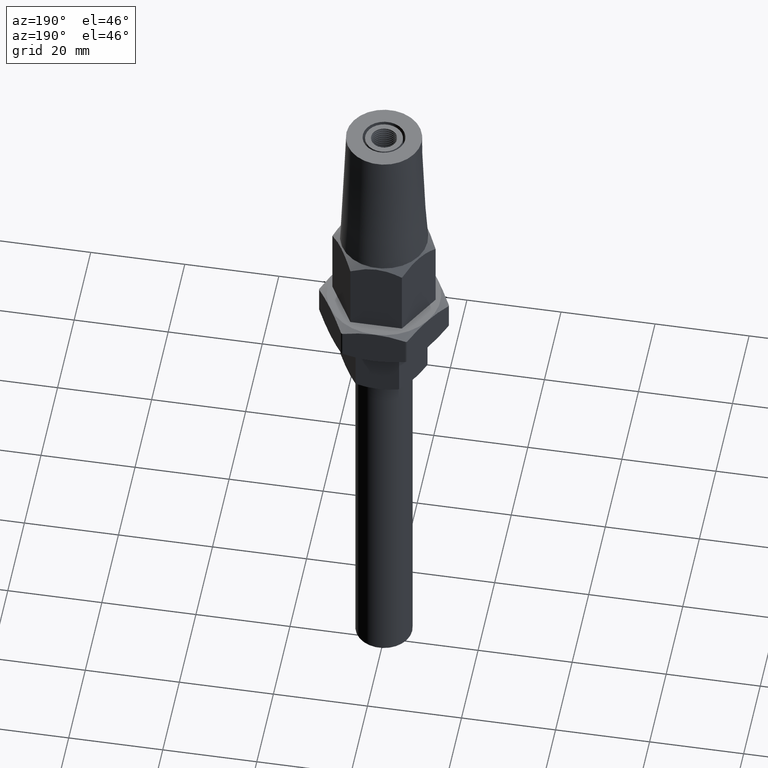
[diagram: clean part render]
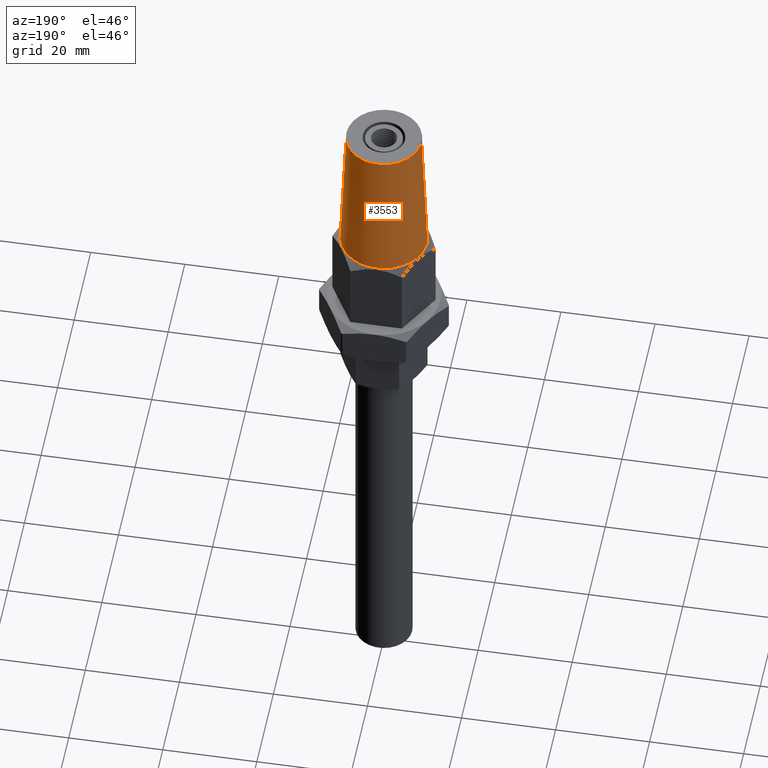
[diagram: same view with one face highlighted and labeled with its STEP entity id]
A machine part, auxiliary view. The second image highlights one B-rep face of the part: STEP entity #3553.
In plain terms, the highlighted conical surface has half-angle 2.386 deg.
Its self-contained STEP definition (entity closure, byte-faithful):
#51 = CIRCLE ( 'NONE', #10696, 9.249999999999998200 ) ;
#189 = ORIENTED_EDGE ( 'NONE', *, *, #17617, .F. ) ;
#268 = CARTESIAN_POINT ( 'NONE',  ( -7.999999999999996400, 0.0000000000000000000, 47.00000000000000000 ) ) ;
#1341 = VERTEX_POINT ( 'NONE', #6211 ) ;
#1478 = VERTEX_POINT ( 'NONE', #13539 ) ;
#1801 = DIRECTION ( 'NONE',  ( -1.000000000000000000, 0.0000000000000000000, 0.0000000000000000000 ) ) ;
#1997 = DIRECTION ( 'NONE',  ( 0.04163054471218118100, 5.098271332853360400E-018, -0.9991330730923518900 ) ) ;
#2028 = CARTESIAN_POINT ( 'NONE',  ( 3.896954326443487200E-015, 0.0000000000000000000, 47.00000000000000000 ) ) ;
#3539 = FACE_OUTER_BOUND ( 'NONE', #11776, .T. ) ;
#3553 = ADVANCED_FACE ( 'NONE', ( #3539 ), #13056, .T. ) ;
#4576 = ORIENTED_EDGE ( 'NONE', *, *, #11749, .T. ) ;
#5005 = LINE ( 'NONE', #13669, #8650 ) ;
#6211 = CARTESIAN_POINT ( 'NONE',  ( 9.250000000000000000, 1.132798289211301500E-015, 17.00000000000000000 ) ) ;
#6513 = CIRCLE ( 'NONE', #9176, 8.000000000000000000 ) ;
#6949 = CARTESIAN_POINT ( 'NONE',  ( -7.999999999999996400, 0.0000000000000000000, 47.00000000000000000 ) ) ;
#7144 = ORIENTED_EDGE ( 'NONE', *, *, #12342, .F. ) ;
#7849 = DIRECTION ( 'NONE',  ( -1.309466755803651800E-016, -0.0000000000000000000, -1.000000000000000000 ) ) ;
#8437 = DIRECTION ( 'NONE',  ( -0.04163054471218144400, 0.0000000000000000000, -0.9991330730923518900 ) ) ;
#8650 = VECTOR ( 'NONE', #1997, 1000.000000000000200 ) ;
#9176 = AXIS2_PLACEMENT_3D ( 'NONE', #9846, #18350, #10745 ) ;
#9230 = AXIS2_PLACEMENT_3D ( 'NONE', #2028, #7849, #1801 ) ;
#9278 = VERTEX_POINT ( 'NONE', #268 ) ;
#9559 = CARTESIAN_POINT ( 'NONE',  ( -9.250000000000000000, 0.0000000000000000000, 17.00000000000000000 ) ) ;
#9846 = CARTESIAN_POINT ( 'NONE',  ( 3.896954326443487200E-015, 0.0000000000000000000, 47.00000000000000000 ) ) ;
#10498 = LINE ( 'NONE', #6949, #13873 ) ;
#10696 = AXIS2_PLACEMENT_3D ( 'NONE', #14367, #18666, #15873 ) ;
#10745 = DIRECTION ( 'NONE',  ( -1.000000000000000000, 0.0000000000000000000, 0.0000000000000000000 ) ) ;
#11749 = EDGE_CURVE ( 'NONE', #9278, #1478, #6513, .T. ) ;
#11776 = EDGE_LOOP ( 'NONE', ( #4576, #15285, #189, #7144 ) ) ;
#12342 = EDGE_CURVE ( 'NONE', #9278, #15947, #10498, .T. ) ;
#13056 = CONICAL_SURFACE ( 'NONE', #9230, 8.000000000000000000, 0.04164257909858840700 ) ;
#13539 = CARTESIAN_POINT ( 'NONE',  ( 8.000000000000003600, 1.056257864264592000E-015, 47.00000000000000000 ) ) ;
#13669 = CARTESIAN_POINT ( 'NONE',  ( 8.000000000000003600, 9.797174393178825700E-016, 47.00000000000000000 ) ) ;
#13873 = VECTOR ( 'NONE', #8437, 1000.000000000000200 ) ;
#14367 = CARTESIAN_POINT ( 'NONE',  ( -3.144594096746843300E-017, 0.0000000000000000000, 17.00000000000000000 ) ) ;
#15285 = ORIENTED_EDGE ( 'NONE', *, *, #17387, .T. ) ;
#15873 = DIRECTION ( 'NONE',  ( -1.000000000000000000, 0.0000000000000000000, 0.0000000000000000000 ) ) ;
#15947 = VERTEX_POINT ( 'NONE', #9559 ) ;
#17387 = EDGE_CURVE ( 'NONE', #1478, #1341, #5005, .T. ) ;
#17617 = EDGE_CURVE ( 'NONE', #15947, #1341, #51, .T. ) ;
#18350 = DIRECTION ( 'NONE',  ( -1.309466755803651800E-016, -0.0000000000000000000, -1.000000000000000000 ) ) ;
#18666 = DIRECTION ( 'NONE',  ( 1.849761233380496100E-018, -0.0000000000000000000, -1.000000000000000000 ) ) ;